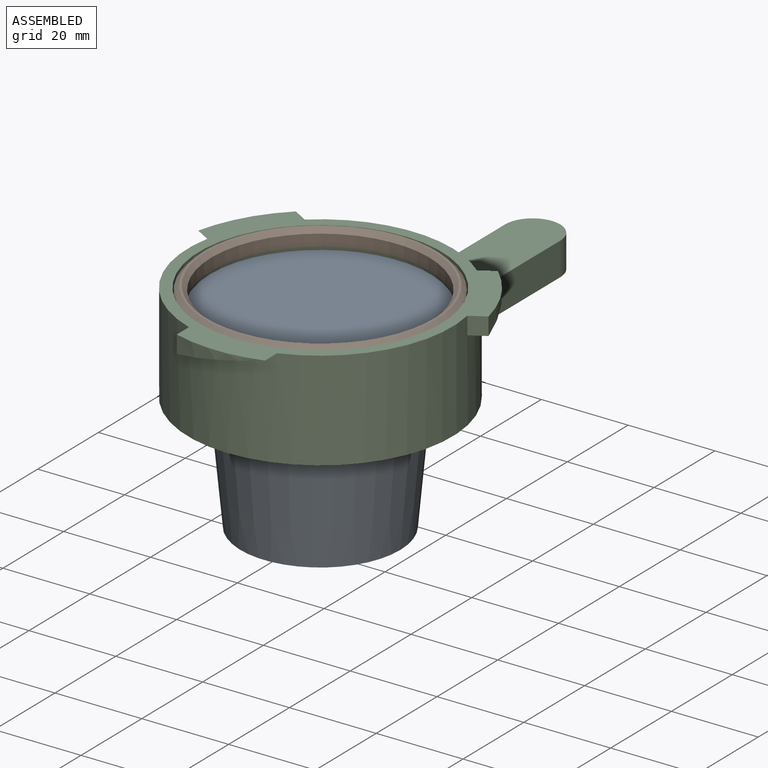
[diagram: assembled view]
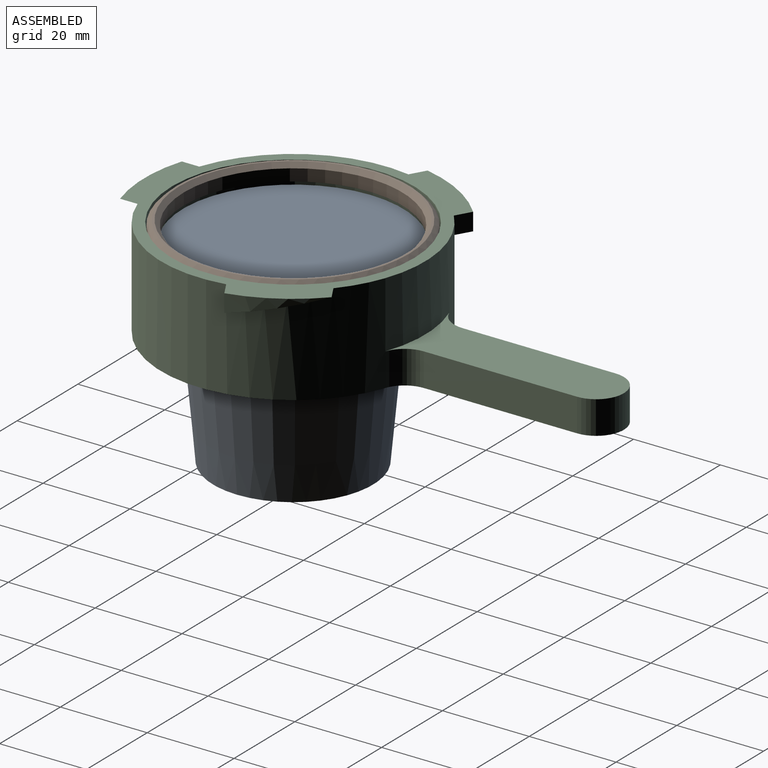
[diagram: assembled view, second angle]
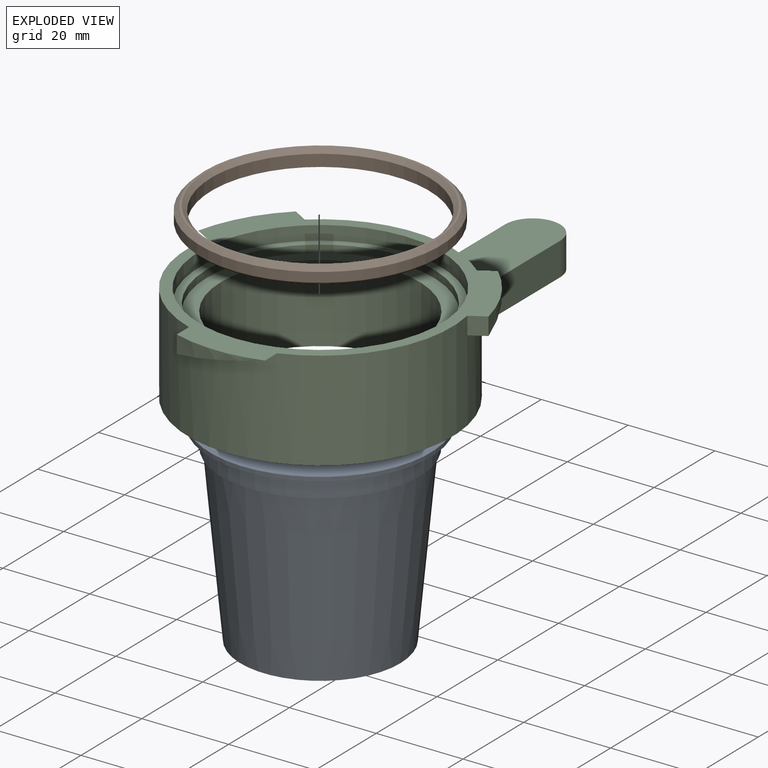
[diagram: exploded view]
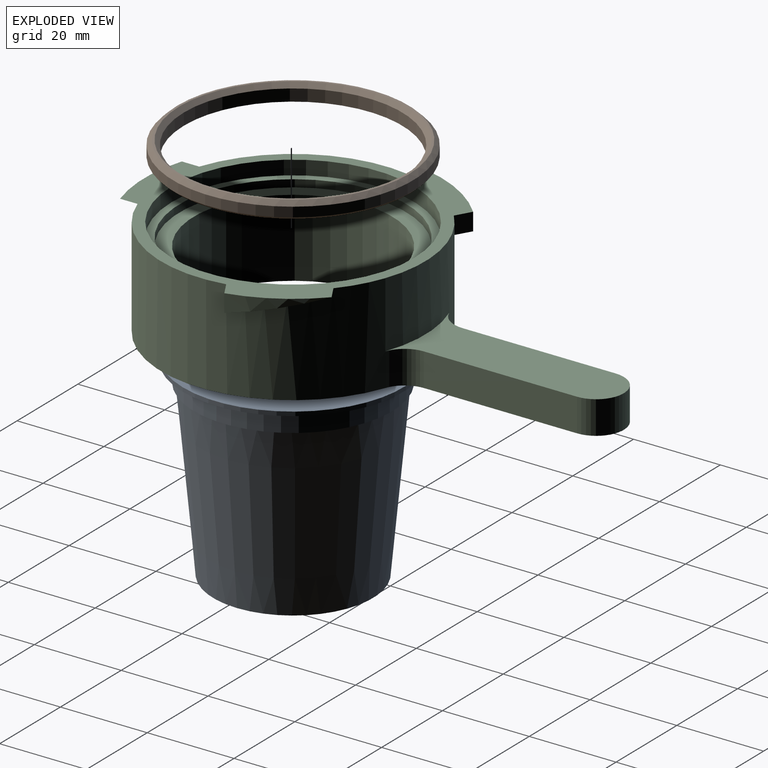
[diagram: exploded view, second angle]
ASSEMBLY  parts=3 mates=4
PART A: 7 faces, bbox 50.8x50.8x45.7 mm
  f0: plane 50.8x50.8mm, normal (0,0,-1), area 2026.8mm2, adj f1
  f1: cylinder r=25.4mm len=50.8mm, axis (0,0,-1), area 150mm2, adj f0,f2
  f2: plane 50.8x50.8mm, normal (0,0,1), area 385.1mm2, adj f1,f3
  f3: cylinder r=22.86mm len=45.72mm, axis (0,0,-1), area 674.9mm2, adj f2,f4
  f4: plane 45.72x45.72mm, normal (0,0,1), area 89.9mm2, adj f3,f5
  f5: cone r=22.23mm half-angle=5.4deg, axis (0,0,-1), area 5140.4mm2, adj f4,f6
  f6: plane 36.83x36.83mm, normal (0,0,1), area 1065.4mm2, adj f5
PART B: 7 faces, bbox 55.4x3.8x55.4 mm
  f0: cylinder r=25.15mm len=50.29mm, axis (0,1,0), area 433.4mm2, adj f3,f5
  f1: cylinder r=27.69mm len=55.37mm, axis (0,1,0), area 388.8mm2, adj f4,f6
  f2: plane 53.34x53.34mm, normal (0,-1,0), area 84.3mm2, adj f4,f5
  f3: plane 54.36x54.36mm, normal (0,1,0), area 334mm2, adj f0,f6
  f4: cone r=26.67mm half-angle=45deg, axis (0,1,0), area 245.4mm2, adj f1,f2
  f5: cone r=25.15mm half-angle=45deg, axis (0,-1,0), area 231.6mm2, adj f0,f2
  f6: cone r=27.69mm half-angle=45deg, axis (0,-1,0), area 123.8mm2, adj f1,f3
PART C: 23 faces, bbox 66.9x22.9x110.5 mm
  f0: plane 66.89x64.77mm, normal (0,1,0), area 706.9mm2, adj f1,f2,f3,f4,f5,f6,f7,f12
  f1: plane 20.32x5.55mm, normal (0.2,-0.98,0), area 80.3mm2, adj f0,f2,f7,f15
  f2: plane 4.06x4.01mm, normal (-1,0,0), area 16.3mm2, adj f0,f1,f7,f15
  f3: plane 19.6x13.64mm, normal (-0.1,-0.98,0.17), area 80.3mm2, adj f0,f4,f7,f14
  f4: plane 4.06x3.48mm, normal (0.5,0,-0.87), area 16.3mm2, adj f0,f3,f7,f14
  f5: plane 19.6x13.64mm, normal (-0.1,-0.98,-0.17), area 80.3mm2, adj f0,f6,f7,f13
  f6: plane 4.06x3.48mm, normal (0.5,0,0.87), area 16.3mm2, adj f0,f5,f7,f13
  f7: cylinder r=30.48mm len=60.96mm, axis (0,-1,0), area 4088.1mm2, adj f0,f1,f2,f3,f4,f5,f6,f16
  f8: plane 55.83x55.83mm, normal (0,1,0), area 297.7mm2, adj f9,f12
  f9: cylinder r=26.16mm len=52.32mm, axis (0,1,0), area 279.7mm2, adj f8,f10
  f10: plane 52.32x52.32mm, normal (0,1,0), area 508.5mm2, adj f9,f11
  f11: cylinder r=22.86mm len=45.72mm, axis (0,1,0), area 2572mm2, adj f10,f16
  f12: cylinder r=27.91mm len=55.83mm, axis (0,-1,0), area 570.2mm2, adj f0,f8
  f13: cylinder r=34.29mm len=17.6mm, axis (0,-1,0), area 41.9mm2, adj f0,f5,f6
  f14: cylinder r=34.29mm len=17.6mm, axis (0,-1,0), area 41.9mm2, adj f0,f3,f4
  f15: cylinder r=34.29mm len=20.32mm, axis (0,-1,0), area 41.9mm2, adj f0,f1,f2
  f16: plane 106.68x60.96mm, normal (0,-1,0), area 1851.1mm2, adj f7,f11,f17,f18,f20,f21,f22
  f17: plane 35.28x7.62mm, normal (1,0,0), area 268.8mm2, adj f16,f19,f21,f22
  f18: plane 35.28x7.62mm, normal (-1,0,0), area 268.8mm2, adj f16,f19,f20,f22
  f19: plane 47.59x21.02mm, normal (0,1,0), area 574.2mm2, adj f7,f17,f18,f20,f21,f22
  f20: cylinder r=6.35mm len=7.62mm, axis (0,-1,0), area 59mm2, adj f7,f16,f18,f19
  f21: cylinder r=6.35mm len=7.62mm, axis (0,-1,0), area 59mm2, adj f7,f16,f17,f19
  f22: cylinder r=6.35mm len=12.7mm, axis (0,-1,0), area 152mm2, adj f16,f17,f18,f19
PLACE A rot(axis=(-1,0,0),180deg) t=(-50.06,-15.44,-12.01)mm
PLACE B rot(axis=(-1,0,0),90deg) t=(-50.06,-15.44,-11.25)mm
PLACE C rot(axis=(1,0,0),90deg) t=(-54.68,-15.44,-11.25)mm fixed
MATE cylindrical C.f9 <-> B.f1  axis (0,0,-1) through (-50.06,-15.44,-9.62)mm
MATE planar C.f7 <-> B.f1  axis (0,0,1) through (-50.06,-15.44,-11.25)mm
MATE cylindrical C.f7 <-> A.f1  axis (0,0,1) through (-50.06,-15.44,-12.95)mm
MATE planar A.f1 <-> C.f7  axis (0,0,-1) through (-50.06,-15.44,-12.95)mm
